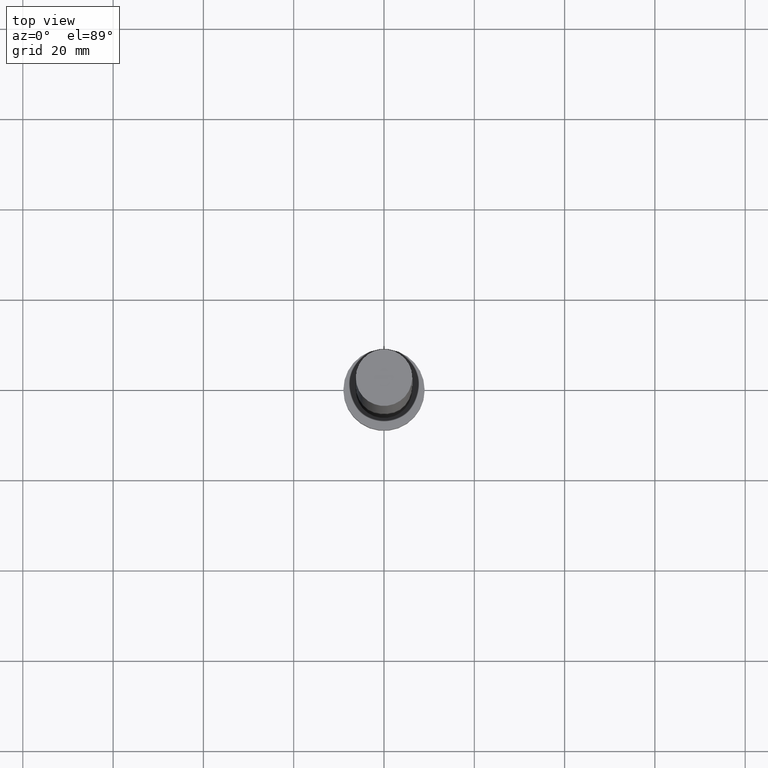
[diagram: clean part render]
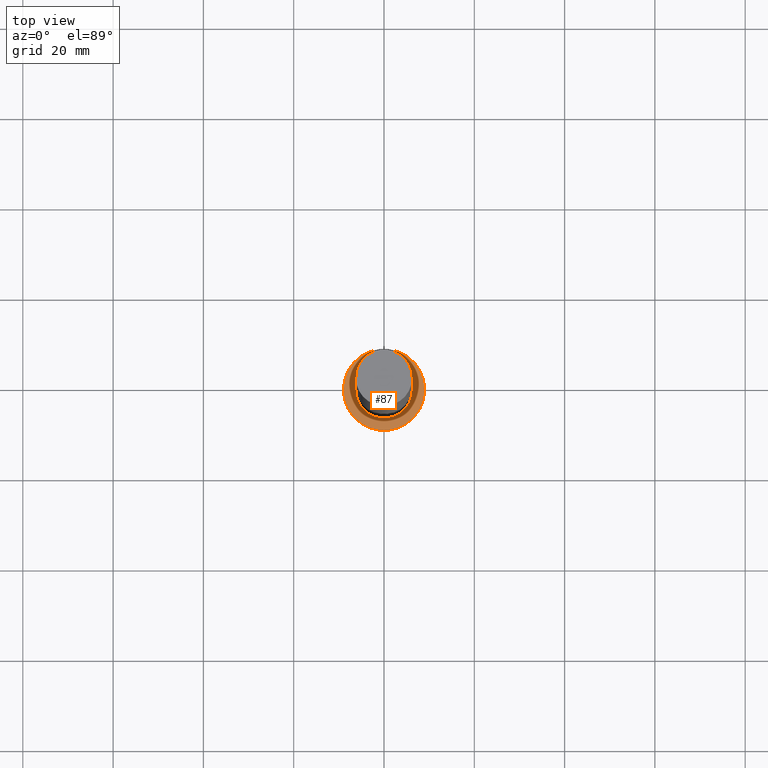
[diagram: same view with one face highlighted and labeled with its STEP entity id]
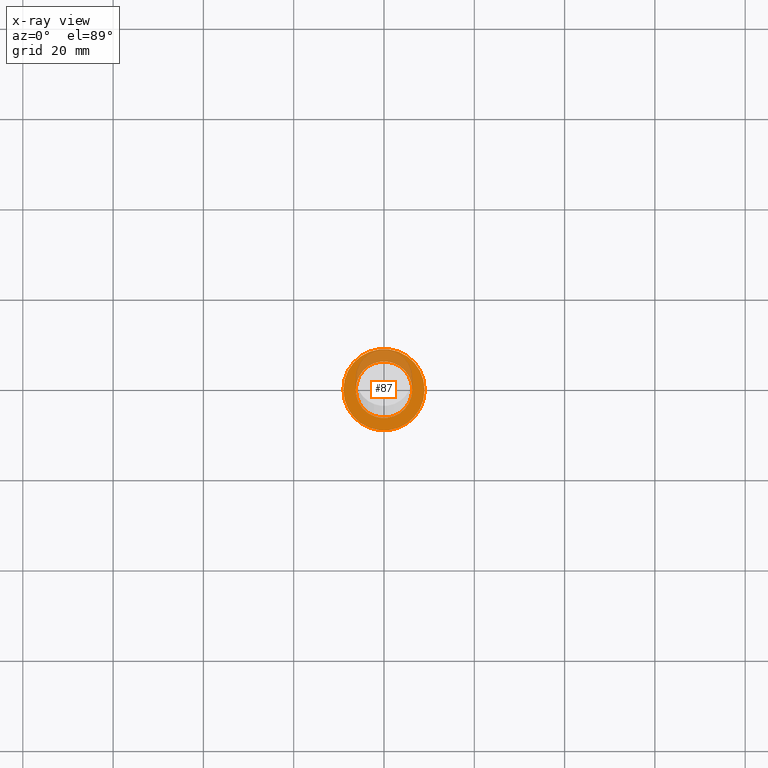
[diagram: x-ray of the same camera — body ghosted, the highlighted face saturated]
A machine part, top view. The second image highlights one B-rep face of the part: STEP entity #87.
The next image is the same camera in x-ray: the body ghosted, the highlighted face saturated — about 26% of this face is hidden behind the body in this view.
In plain terms, the highlighted planar face has unit normal (0, 0, 1).
Its self-contained STEP definition (entity closure, byte-faithful):
#1 = EDGE_CURVE ( 'NONE', #211, #230, #2, .T. ) ;
#2 = CIRCLE ( 'NONE', #23, 6.250000000000000000 ) ;
#10 = DIRECTION ( 'NONE',  ( 1.000000000000000000, 0.000000000000000000, 0.000000000000000000 ) ) ;
#11 = CARTESIAN_POINT ( 'NONE',  ( 0.000000000000000000, 0.000000000000000000, 7.000000000000000000 ) ) ;
#23 = AXIS2_PLACEMENT_3D ( 'NONE', #236, #41, #191 ) ;
#29 = AXIS2_PLACEMENT_3D ( 'NONE', #182, #207, #106 ) ;
#31 = DIRECTION ( 'NONE',  ( 0.000000000000000000, 0.000000000000000000, 1.000000000000000000 ) ) ;
#36 = AXIS2_PLACEMENT_3D ( 'NONE', #11, #46, #104 ) ;
#37 = EDGE_CURVE ( 'NONE', #230, #211, #136, .T. ) ;
#41 = DIRECTION ( 'NONE',  ( 0.000000000000000000, 0.000000000000000000, 1.000000000000000000 ) ) ;
#46 = DIRECTION ( 'NONE',  ( 0.000000000000000000, 0.000000000000000000, 1.000000000000000000 ) ) ;
#47 = ORIENTED_EDGE ( 'NONE', *, *, #37, .F. ) ;
#63 = VERTEX_POINT ( 'NONE', #228 ) ;
#67 = AXIS2_PLACEMENT_3D ( 'NONE', #225, #229, #10 ) ;
#82 = FACE_BOUND ( 'NONE', #188, .T. ) ;
#84 = FACE_OUTER_BOUND ( 'NONE', #103, .T. ) ;
#87 = ADVANCED_FACE ( 'NONE', ( #82, #84 ), #125, .T. ) ;
#94 = VERTEX_POINT ( 'NONE', #161 ) ;
#95 = CIRCLE ( 'NONE', #67, 9.000000000000000000 ) ;
#103 = EDGE_LOOP ( 'NONE', ( #129, #115 ) ) ;
#104 = DIRECTION ( 'NONE',  ( 1.000000000000000000, 0.000000000000000000, 0.000000000000000000 ) ) ;
#106 = DIRECTION ( 'NONE',  ( 1.000000000000000000, 0.000000000000000000, 0.000000000000000000 ) ) ;
#115 = ORIENTED_EDGE ( 'NONE', *, *, #252, .T. ) ;
#119 = EDGE_CURVE ( 'NONE', #94, #63, #198, .T. ) ;
#125 = PLANE ( 'NONE',  #204 ) ;
#129 = ORIENTED_EDGE ( 'NONE', *, *, #119, .T. ) ;
#133 = CARTESIAN_POINT ( 'NONE',  ( 6.250000000000000000, 7.654042494670957606E-16, 7.000000000000000000 ) ) ;
#136 = CIRCLE ( 'NONE', #29, 6.250000000000000000 ) ;
#159 = ORIENTED_EDGE ( 'NONE', *, *, #1, .F. ) ;
#161 = CARTESIAN_POINT ( 'NONE',  ( -9.000000000000000000, 0.000000000000000000, 7.000000000000000000 ) ) ;
#182 = CARTESIAN_POINT ( 'NONE',  ( 0.000000000000000000, 0.000000000000000000, 7.000000000000000000 ) ) ;
#188 = EDGE_LOOP ( 'NONE', ( #47, #159 ) ) ;
#191 = DIRECTION ( 'NONE',  ( 1.000000000000000000, 0.000000000000000000, 0.000000000000000000 ) ) ;
#198 = CIRCLE ( 'NONE', #36, 9.000000000000000000 ) ;
#202 = CARTESIAN_POINT ( 'NONE',  ( 0.000000000000000000, 0.000000000000000000, 7.000000000000000000 ) ) ;
#204 = AXIS2_PLACEMENT_3D ( 'NONE', #202, #31, #205 ) ;
#205 = DIRECTION ( 'NONE',  ( 1.000000000000000000, 0.000000000000000000, -0.000000000000000000 ) ) ;
#207 = DIRECTION ( 'NONE',  ( 0.000000000000000000, 0.000000000000000000, 1.000000000000000000 ) ) ;
#211 = VERTEX_POINT ( 'NONE', #133 ) ;
#225 = CARTESIAN_POINT ( 'NONE',  ( 0.000000000000000000, 0.000000000000000000, 7.000000000000000000 ) ) ;
#228 = CARTESIAN_POINT ( 'NONE',  ( 9.000000000000000000, 1.102182119232617714E-15, 7.000000000000000000 ) ) ;
#229 = DIRECTION ( 'NONE',  ( 0.000000000000000000, 0.000000000000000000, 1.000000000000000000 ) ) ;
#230 = VERTEX_POINT ( 'NONE', #248 ) ;
#236 = CARTESIAN_POINT ( 'NONE',  ( 0.000000000000000000, 0.000000000000000000, 7.000000000000000000 ) ) ;
#248 = CARTESIAN_POINT ( 'NONE',  ( -6.250000000000000000, 0.000000000000000000, 7.000000000000000000 ) ) ;
#252 = EDGE_CURVE ( 'NONE', #63, #94, #95, .T. ) ;